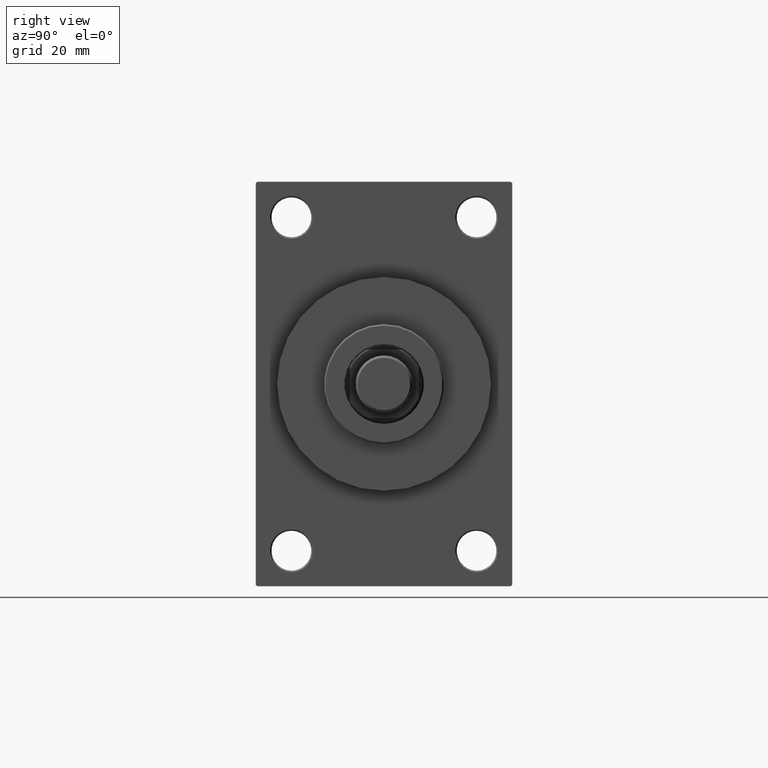
[diagram: clean part render]
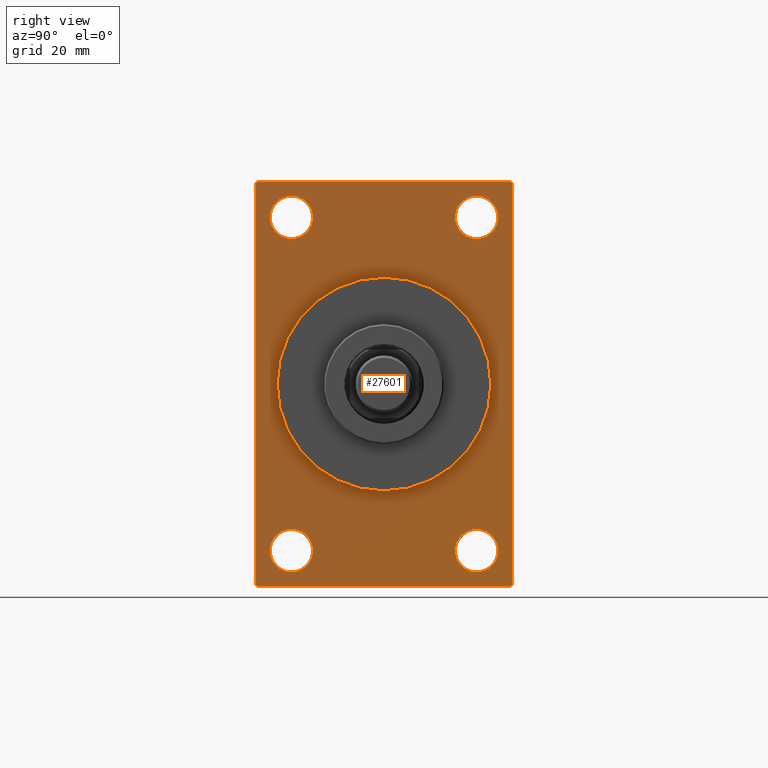
[diagram: same view with one face highlighted and labeled with its STEP entity id]
A machine part, right view. The second image highlights one B-rep face of the part: STEP entity #27601.
In plain terms, the highlighted planar face has unit normal (-1, 0, 0).
Its self-contained STEP definition (entity closure, byte-faithful):
#554 = DIRECTION ( 'NONE',  ( 0.000000000000000000, 0.000000000000000000, 1.000000000000000000 ) ) ;
#563 = FACE_BOUND ( 'NONE', #19017, .T. ) ;
#943 = EDGE_CURVE ( 'NONE', #16673, #16911, #38857, .T. ) ;
#1263 = DIRECTION ( 'NONE',  ( -1.000000000000000000, 0.000000000000000000, -0.000000000000000000 ) ) ;
#1523 = DIRECTION ( 'NONE',  ( 0.000000000000000000, 0.000000000000000000, 1.000000000000000000 ) ) ;
#1632 = LINE ( 'NONE', #37568, #18094 ) ;
#1890 = CARTESIAN_POINT ( 'NONE',  ( 128.0000000000000000, -44.99999999999997158, 70.50000000000000000 ) ) ;
#2536 = CARTESIAN_POINT ( 'NONE',  ( 128.0000000000000000, -44.49999999999994316, -71.00000000000000000 ) ) ;
#2649 = LINE ( 'NONE', #46523, #46580 ) ;
#2652 = CARTESIAN_POINT ( 'NONE',  ( 128.0000000000000000, 4.592425496802575156E-15, -37.50000000000000711 ) ) ;
#3060 = VERTEX_POINT ( 'NONE', #37261 ) ;
#3528 = ORIENTED_EDGE ( 'NONE', *, *, #6028, .T. ) ;
#3657 = EDGE_CURVE ( 'NONE', #33162, #17900, #37681, .T. ) ;
#3709 = EDGE_CURVE ( 'NONE', #13327, #14298, #8039, .T. ) ;
#3775 = CIRCLE ( 'NONE', #31467, 37.50000000000000711 ) ;
#4420 = FACE_BOUND ( 'NONE', #9316, .T. ) ;
#4951 = EDGE_CURVE ( 'NONE', #17348, #17900, #2649, .T. ) ;
#5340 = EDGE_CURVE ( 'NONE', #8515, #15427, #24301, .T. ) ;
#5380 = CARTESIAN_POINT ( 'NONE',  ( 128.0000000000000000, 45.00000000000002132, 70.50000000000000000 ) ) ;
#5433 = ORIENTED_EDGE ( 'NONE', *, *, #46246, .F. ) ;
#5762 = VERTEX_POINT ( 'NONE', #40853 ) ;
#5972 = VECTOR ( 'NONE', #23615, 1000.000000000000114 ) ;
#6028 = EDGE_CURVE ( 'NONE', #16911, #16673, #23536, .T. ) ;
#6169 = DIRECTION ( 'NONE',  ( 1.000000000000000000, 0.000000000000000000, 0.000000000000000000 ) ) ;
#6618 = EDGE_CURVE ( 'NONE', #13164, #27744, #25884, .T. ) ;
#6631 = AXIS2_PLACEMENT_3D ( 'NONE', #23723, #45415, #38181 ) ;
#7724 = DIRECTION ( 'NONE',  ( -0.000000000000000000, -0.7071067811865622277, -0.7071067811865328068 ) ) ;
#8039 = CIRCLE ( 'NONE', #42698, 7.499999999999909406 ) ;
#8243 = DIRECTION ( 'NONE',  ( -1.000000000000000000, 0.000000000000000000, -0.000000000000000000 ) ) ;
#8515 = VERTEX_POINT ( 'NONE', #5380 ) ;
#8880 = DIRECTION ( 'NONE',  ( -1.000000000000000000, 0.000000000000000000, -0.000000000000000000 ) ) ;
#9175 = CARTESIAN_POINT ( 'NONE',  ( 128.0000000000000000, 44.50000000000004263, -70.99999999999998579 ) ) ;
#9316 = EDGE_LOOP ( 'NONE', ( #35704, #29993 ) ) ;
#9760 = VERTEX_POINT ( 'NONE', #1890 ) ;
#9777 = CARTESIAN_POINT ( 'NONE',  ( 128.0000000000000000, 0.000000000000000000, 0.000000000000000000 ) ) ;
#9893 = CIRCLE ( 'NONE', #36861, 7.499999999999909406 ) ;
#9896 = CIRCLE ( 'NONE', #32243, 7.499999999999909406 ) ;
#10068 = ORIENTED_EDGE ( 'NONE', *, *, #6618, .T. ) ;
#11329 = LINE ( 'NONE', #18579, #43174 ) ;
#12015 = CARTESIAN_POINT ( 'NONE',  ( 128.0000000000000000, -32.50000000000000000, -58.49999999999999289 ) ) ;
#12318 = CARTESIAN_POINT ( 'NONE',  ( 128.0000000000000000, 45.00000000000001421, -70.50000000000001421 ) ) ;
#12354 = DIRECTION ( 'NONE',  ( 0.000000000000000000, 0.7071067811865771047, -0.7071067811865180408 ) ) ;
#12685 = LINE ( 'NONE', #28101, #40669 ) ;
#13108 = DIRECTION ( 'NONE',  ( -1.000000000000000000, 0.000000000000000000, -0.000000000000000000 ) ) ;
#13164 = VERTEX_POINT ( 'NONE', #40465 ) ;
#13249 = DIRECTION ( 'NONE',  ( 0.000000000000000000, 0.000000000000000000, 1.000000000000000000 ) ) ;
#13327 = VERTEX_POINT ( 'NONE', #38736 ) ;
#13511 = AXIS2_PLACEMENT_3D ( 'NONE', #12015, #8880, #37818 ) ;
#14233 = VECTOR ( 'NONE', #20693, 1000.000000000000000 ) ;
#14298 = VERTEX_POINT ( 'NONE', #24725 ) ;
#14496 = CARTESIAN_POINT ( 'NONE',  ( 128.0000000000000000, -44.99999999999997158, -70.50000000000002842 ) ) ;
#14506 = EDGE_LOOP ( 'NONE', ( #30985, #28813 ) ) ;
#15262 = CARTESIAN_POINT ( 'NONE',  ( 128.0000000000000000, 0.000000000000000000, 0.000000000000000000 ) ) ;
#15427 = VERTEX_POINT ( 'NONE', #12318 ) ;
#15691 = EDGE_LOOP ( 'NONE', ( #41881, #19146, #37881, #33922, #28709, #43708, #36570, #28470 ) ) ;
#15897 = CARTESIAN_POINT ( 'NONE',  ( 128.0000000000000000, 44.50000000000002132, 71.00000000000000000 ) ) ;
#15975 = CARTESIAN_POINT ( 'NONE',  ( 128.0000000000000000, 32.50000000000000711, 58.50000000000000711 ) ) ;
#16056 = EDGE_CURVE ( 'NONE', #3060, #44993, #33222, .T. ) ;
#16215 = EDGE_CURVE ( 'NONE', #17348, #15427, #12685, .T. ) ;
#16251 = CARTESIAN_POINT ( 'NONE',  ( 128.0000000000000000, 32.50000000000000711, -58.50000000000000000 ) ) ;
#16673 = VERTEX_POINT ( 'NONE', #31830 ) ;
#16911 = VERTEX_POINT ( 'NONE', #42371 ) ;
#17348 = VERTEX_POINT ( 'NONE', #9175 ) ;
#17486 = VERTEX_POINT ( 'NONE', #2652 ) ;
#17892 = EDGE_LOOP ( 'NONE', ( #10068, #41307 ) ) ;
#17900 = VERTEX_POINT ( 'NONE', #2536 ) ;
#18033 = AXIS2_PLACEMENT_3D ( 'NONE', #39969, #47181, #43340 ) ;
#18066 = AXIS2_PLACEMENT_3D ( 'NONE', #23448, #19823, #554 ) ;
#18094 = VECTOR ( 'NONE', #26253, 1000.000000000000000 ) ;
#18117 = CARTESIAN_POINT ( 'NONE',  ( 128.0000000000000000, -32.50000000000000000, 65.99999999999991473 ) ) ;
#18579 = CARTESIAN_POINT ( 'NONE',  ( 128.0000000000000000, -44.99999999999997158, 70.50000000000000000 ) ) ;
#19017 = EDGE_LOOP ( 'NONE', ( #44181, #5433 ) ) ;
#19146 = ORIENTED_EDGE ( 'NONE', *, *, #3657, .T. ) ;
#19823 = DIRECTION ( 'NONE',  ( -1.000000000000000000, 0.000000000000000000, -0.000000000000000000 ) ) ;
#20253 = CARTESIAN_POINT ( 'NONE',  ( 128.0000000000000000, 32.50000000000000711, 58.50000000000000711 ) ) ;
#20438 = AXIS2_PLACEMENT_3D ( 'NONE', #36960, #8243, #41271 ) ;
#20693 = DIRECTION ( 'NONE',  ( 0.000000000000000000, -4.886545002751570165E-17, -1.000000000000000000 ) ) ;
#21993 = EDGE_CURVE ( 'NONE', #44993, #9760, #11329, .T. ) ;
#23448 = CARTESIAN_POINT ( 'NONE',  ( 128.0000000000000000, -32.50000000000000000, -58.49999999999999289 ) ) ;
#23536 = CIRCLE ( 'NONE', #13511, 7.499999999999985789 ) ;
#23615 = DIRECTION ( 'NONE',  ( 0.000000000000000000, -0.7071067811865474617, 0.7071067811865474617 ) ) ;
#23723 = CARTESIAN_POINT ( 'NONE',  ( 128.0000000000000000, -32.50000000000000000, 58.50000000000000711 ) ) ;
#24061 = ORIENTED_EDGE ( 'NONE', *, *, #943, .T. ) ;
#24301 = LINE ( 'NONE', #38998, #14233 ) ;
#24725 = CARTESIAN_POINT ( 'NONE',  ( 128.0000000000000000, 32.50000000000000711, 51.00000000000009948 ) ) ;
#25884 = CIRCLE ( 'NONE', #6631, 7.499999999999909406 ) ;
#26253 = DIRECTION ( 'NONE',  ( 0.000000000000000000, 0.000000000000000000, -1.000000000000000000 ) ) ;
#27061 = DIRECTION ( 'NONE',  ( -1.000000000000000000, 0.000000000000000000, -0.000000000000000000 ) ) ;
#27601 = ADVANCED_FACE ( 'NONE', ( #34060, #34291, #4420, #30434, #563, #29737 ), #33359, .F. ) ;
#27625 = DIRECTION ( 'NONE',  ( 0.000000000000000000, 0.000000000000000000, -1.000000000000000000 ) ) ;
#27744 = VERTEX_POINT ( 'NONE', #18117 ) ;
#28101 = CARTESIAN_POINT ( 'NONE',  ( 128.0000000000000000, 45.00000000000001421, -70.50000000000001421 ) ) ;
#28469 = EDGE_CURVE ( 'NONE', #39854, #17486, #32664, .T. ) ;
#28470 = ORIENTED_EDGE ( 'NONE', *, *, #21993, .T. ) ;
#28709 = ORIENTED_EDGE ( 'NONE', *, *, #5340, .F. ) ;
#28813 = ORIENTED_EDGE ( 'NONE', *, *, #3709, .T. ) ;
#28875 = CARTESIAN_POINT ( 'NONE',  ( 128.0000000000000000, 45.00000000000002132, 71.00000000000000000 ) ) ;
#29737 = FACE_OUTER_BOUND ( 'NONE', #15691, .T. ) ;
#29993 = ORIENTED_EDGE ( 'NONE', *, *, #34772, .T. ) ;
#30373 = VECTOR ( 'NONE', #12354, 999.9999999999998863 ) ;
#30434 = FACE_BOUND ( 'NONE', #14506, .T. ) ;
#30707 = DIRECTION ( 'NONE',  ( 0.000000000000000000, 0.000000000000000000, 1.000000000000000000 ) ) ;
#30732 = EDGE_LOOP ( 'NONE', ( #3528, #24061 ) ) ;
#30985 = ORIENTED_EDGE ( 'NONE', *, *, #41699, .T. ) ;
#31171 = DIRECTION ( 'NONE',  ( -1.000000000000000000, 0.000000000000000000, -0.000000000000000000 ) ) ;
#31467 = AXIS2_PLACEMENT_3D ( 'NONE', #9777, #6169, #27625 ) ;
#31830 = CARTESIAN_POINT ( 'NONE',  ( 128.0000000000000000, -32.50000000000000000, -51.00000000000000711 ) ) ;
#32243 = AXIS2_PLACEMENT_3D ( 'NONE', #20253, #38576, #13249 ) ;
#32664 = CIRCLE ( 'NONE', #18033, 37.50000000000000711 ) ;
#33162 = VERTEX_POINT ( 'NONE', #14496 ) ;
#33222 = LINE ( 'NONE', #28875, #44513 ) ;
#33359 = PLANE ( 'NONE',  #45719 ) ;
#33546 = EDGE_CURVE ( 'NONE', #9760, #33162, #1632, .T. ) ;
#33922 = ORIENTED_EDGE ( 'NONE', *, *, #16215, .T. ) ;
#34060 = FACE_BOUND ( 'NONE', #17892, .T. ) ;
#34291 = FACE_BOUND ( 'NONE', #30732, .T. ) ;
#34409 = CARTESIAN_POINT ( 'NONE',  ( 128.0000000000000000, 32.50000000000000711, -51.00000000000001421 ) ) ;
#34610 = EDGE_CURVE ( 'NONE', #5762, #38918, #46625, .T. ) ;
#34772 = EDGE_CURVE ( 'NONE', #38918, #5762, #42768, .T. ) ;
#34787 = CARTESIAN_POINT ( 'NONE',  ( 128.0000000000000000, -32.50000000000000000, 58.50000000000000711 ) ) ;
#35704 = ORIENTED_EDGE ( 'NONE', *, *, #34610, .T. ) ;
#35854 = AXIS2_PLACEMENT_3D ( 'NONE', #16251, #13108, #30707 ) ;
#36570 = ORIENTED_EDGE ( 'NONE', *, *, #16056, .T. ) ;
#36861 = AXIS2_PLACEMENT_3D ( 'NONE', #34787, #31171, #1523 ) ;
#36960 = CARTESIAN_POINT ( 'NONE',  ( 128.0000000000000000, 32.50000000000000711, -58.50000000000000000 ) ) ;
#37261 = CARTESIAN_POINT ( 'NONE',  ( 128.0000000000000000, 44.50000000000002132, 71.00000000000000000 ) ) ;
#37568 = CARTESIAN_POINT ( 'NONE',  ( 128.0000000000000000, -44.99999999999997158, 70.99999999999998579 ) ) ;
#37681 = LINE ( 'NONE', #45615, #30373 ) ;
#37818 = DIRECTION ( 'NONE',  ( 0.000000000000000000, 0.000000000000000000, 1.000000000000000000 ) ) ;
#37881 = ORIENTED_EDGE ( 'NONE', *, *, #4951, .F. ) ;
#38181 = DIRECTION ( 'NONE',  ( 0.000000000000000000, 0.000000000000000000, 1.000000000000000000 ) ) ;
#38576 = DIRECTION ( 'NONE',  ( -1.000000000000000000, 0.000000000000000000, -0.000000000000000000 ) ) ;
#38736 = CARTESIAN_POINT ( 'NONE',  ( 128.0000000000000000, 32.50000000000000711, 65.99999999999991473 ) ) ;
#38857 = CIRCLE ( 'NONE', #18066, 7.499999999999985789 ) ;
#38918 = VERTEX_POINT ( 'NONE', #34409 ) ;
#38998 = CARTESIAN_POINT ( 'NONE',  ( 128.0000000000000000, 45.00000000000002132, 71.00000000000000000 ) ) ;
#39440 = DIRECTION ( 'NONE',  ( -0.000000000000000000, 0.7071067811865574537, 0.7071067811865376918 ) ) ;
#39721 = EDGE_CURVE ( 'NONE', #8515, #3060, #44602, .T. ) ;
#39854 = VERTEX_POINT ( 'NONE', #45769 ) ;
#39969 = CARTESIAN_POINT ( 'NONE',  ( 128.0000000000000000, 0.000000000000000000, 0.000000000000000000 ) ) ;
#40465 = CARTESIAN_POINT ( 'NONE',  ( 128.0000000000000000, -32.50000000000000000, 51.00000000000009948 ) ) ;
#40669 = VECTOR ( 'NONE', #39440, 999.9999999999998863 ) ;
#40853 = CARTESIAN_POINT ( 'NONE',  ( 128.0000000000000000, 32.50000000000000711, -65.99999999999997158 ) ) ;
#41271 = DIRECTION ( 'NONE',  ( 0.000000000000000000, 0.000000000000000000, 1.000000000000000000 ) ) ;
#41307 = ORIENTED_EDGE ( 'NONE', *, *, #45694, .T. ) ;
#41699 = EDGE_CURVE ( 'NONE', #14298, #13327, #9896, .T. ) ;
#41769 = DIRECTION ( 'NONE',  ( 0.000000000000000000, 0.000000000000000000, 1.000000000000000000 ) ) ;
#41881 = ORIENTED_EDGE ( 'NONE', *, *, #33546, .T. ) ;
#42371 = CARTESIAN_POINT ( 'NONE',  ( 128.0000000000000000, -32.50000000000000000, -65.99999999999995737 ) ) ;
#42698 = AXIS2_PLACEMENT_3D ( 'NONE', #15975, #27061, #41769 ) ;
#42768 = CIRCLE ( 'NONE', #20438, 7.499999999999978684 ) ;
#42910 = CARTESIAN_POINT ( 'NONE',  ( 128.0000000000000000, -44.49999999999995026, 70.99999999999998579 ) ) ;
#43150 = DIRECTION ( 'NONE',  ( 0.000000000000000000, -1.000000000000000000, -1.541976423090495633E-16 ) ) ;
#43174 = VECTOR ( 'NONE', #7724, 1000.000000000000000 ) ;
#43340 = DIRECTION ( 'NONE',  ( 0.000000000000000000, 0.000000000000000000, -1.000000000000000000 ) ) ;
#43586 = DIRECTION ( 'NONE',  ( 0.000000000000000000, -1.000000000000000000, -1.541976423090495387E-16 ) ) ;
#43708 = ORIENTED_EDGE ( 'NONE', *, *, #39721, .T. ) ;
#44181 = ORIENTED_EDGE ( 'NONE', *, *, #28469, .F. ) ;
#44513 = VECTOR ( 'NONE', #43586, 1000.000000000000000 ) ;
#44602 = LINE ( 'NONE', #15897, #5972 ) ;
#44904 = DIRECTION ( 'NONE',  ( -0.000000000000000000, 0.000000000000000000, 1.000000000000000000 ) ) ;
#44993 = VERTEX_POINT ( 'NONE', #42910 ) ;
#45415 = DIRECTION ( 'NONE',  ( -1.000000000000000000, 0.000000000000000000, -0.000000000000000000 ) ) ;
#45615 = CARTESIAN_POINT ( 'NONE',  ( 128.0000000000000000, -44.49999999999997158, -71.00000000000000000 ) ) ;
#45694 = EDGE_CURVE ( 'NONE', #27744, #13164, #9893, .T. ) ;
#45719 = AXIS2_PLACEMENT_3D ( 'NONE', #15262, #1263, #44904 ) ;
#45769 = CARTESIAN_POINT ( 'NONE',  ( 128.0000000000000000, 0.000000000000000000, 37.50000000000000711 ) ) ;
#46246 = EDGE_CURVE ( 'NONE', #17486, #39854, #3775, .T. ) ;
#46523 = CARTESIAN_POINT ( 'NONE',  ( 128.0000000000000000, 45.00000000000001421, -70.99999999999998579 ) ) ;
#46580 = VECTOR ( 'NONE', #43150, 1000.000000000000000 ) ;
#46625 = CIRCLE ( 'NONE', #35854, 7.499999999999978684 ) ;
#47181 = DIRECTION ( 'NONE',  ( 1.000000000000000000, 0.000000000000000000, 0.000000000000000000 ) ) ;